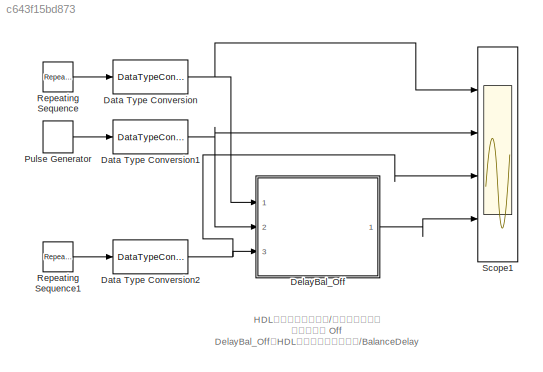
MODEL slx_c643f15bd873
KIND model
CONFIG AbsTol = auto
CONFIG FixedStep = auto
CONFIG MaxStep = auto
CONFIG MinStep = auto
CONFIG RelTol = 1e-3
CONFIG SampleTimeConstraint = Unconstrained
CONFIG Solver = FixedStepDiscrete
CONFIG SolverMode = SingleTasking
CONFIG SolverName = FixedStepDiscrete
CONFIG StartTime = 0.0
CONFIG StopTime = 10
BLOCK [DataTypeConversion] Data Type Conversion
  OutDataTypeStr = fixdt(1,16,12)
  OutMax = 2*pi
  OutMin = 0
  RndMeth = Floor
  SampleTime = 1/1000
  SaturateOnIntegerOverflow = off
BLOCK [DataTypeConversion] Data Type Conversion1
  OutDataTypeStr = boolean
  RndMeth = Floor
  SampleTime = 1/1000
  SaturateOnIntegerOverflow = off
BLOCK [DataTypeConversion] Data Type Conversion2
  OutDataTypeStr = fixdt(0,8,4)
  OutMax = 10
  OutMin = 0
  RndMeth = Floor
  SampleTime = 1/1000
  SaturateOnIntegerOverflow = off
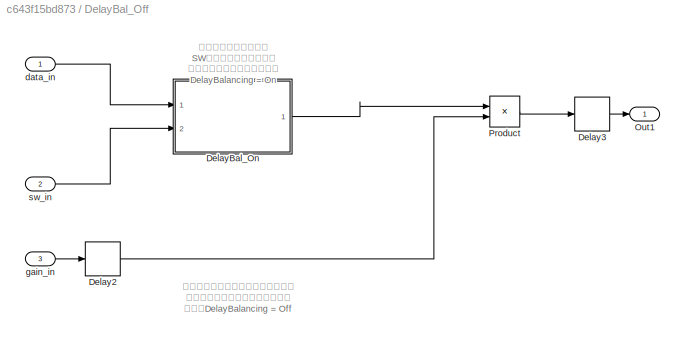
BLOCK [SubSystem] DelayBal_Off
  Ports = [3, 1]
  RequestExecContextInheritance = off
  Variant = off
BLOCK [Delay] DelayBal_Off/Delay2
  DelayLength = 1
  InputPortMap = u0
  Ports = [1, 1]
BLOCK [Delay] DelayBal_Off/Delay3
  DelayLength = 1
  InputPortMap = u0
  Ports = [1, 1]
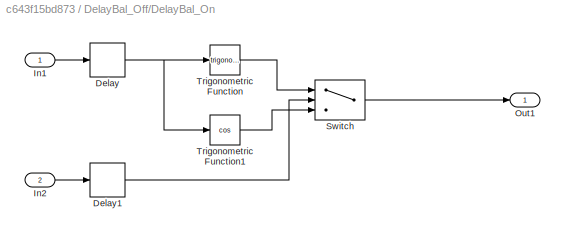
BLOCK [SubSystem] DelayBal_Off/DelayBal_On
  Ports = [2, 1]
  RequestExecContextInheritance = off
  Variant = off
BLOCK [Delay] DelayBal_Off/DelayBal_On/Delay
  DelayLength = 1
  InputPortMap = u0
  Ports = [1, 1]
BLOCK [Delay] DelayBal_Off/DelayBal_On/Delay1
  DelayLength = 1
  InputPortMap = u0
  Ports = [1, 1]
BLOCK [Inport] DelayBal_Off/DelayBal_On/In1
  IconDisplay = Port number
BLOCK [Inport] DelayBal_Off/DelayBal_On/In2
  IconDisplay = Port number
  Port = 2
BLOCK [Outport] DelayBal_Off/DelayBal_On/Out1
  IconDisplay = Port number
BLOCK [Switch] DelayBal_Off/DelayBal_On/Switch
  Criteria = u2 ~= 0
  InputSameDT = off
  SaturateOnIntegerOverflow = off
BLOCK [Trigonometry] DelayBal_Off/DelayBal_On/Trigonometric Function
  ApproximationMethod = CORDIC
  Ports = [1, 1]
BLOCK [Trigonometry] DelayBal_Off/DelayBal_On/Trigonometric Function1
  ApproximationMethod = CORDIC
  Operator = cos
  Ports = [1, 1]
BLOCK [Outport] DelayBal_Off/Out1
  IconDisplay = Port number
BLOCK [Product] DelayBal_Off/Product
  InputSameDT = off
  OutDataTypeStr = Inherit: Inherit via internal rule
  Ports = [2, 1]
  SaturateOnIntegerOverflow = off
BLOCK [Inport] DelayBal_Off/data_in
  IconDisplay = Port number
BLOCK [Inport] DelayBal_Off/gain_in
  IconDisplay = Port number
  Port = 3
BLOCK [Inport] DelayBal_Off/sw_in
  IconDisplay = Port number
  Port = 2
BLOCK [DiscretePulseGenerator] Pulse Generator
  Period = 1000*10
  Ports = [0, 1]
  PulseWidth = 1000*5
  SampleTime = 1/1000
BLOCK [Reference] Repeating Sequence  REF=simulink/Sources/Repeating
Sequence
  Ports = [0, 1]
  SourceBlock = simulink/Sources/Repeating\nSequence
  SourceType = Repeating table
BLOCK [Reference] Repeating Sequence1  REF=simulink/Sources/Repeating
Sequence
  Ports = [0, 1]
  SourceBlock = simulink/Sources/Repeating\nSequence
  SourceType = Repeating table
BLOCK [Scope] Scope1
  NumInputPorts = 4
  Ports = [4]
  ScopeSpecificationString = Simulink.scopes.TimeScopeBlockCfg('CurrentConfiguration', extmgr.ConfigurationSet(extmgr.Configuration('Core','General UI',true),extmgr.Configuration('Core','Source UI',true),extmgr.Configuration('Sources','WiredSimulink',true,'DataLoggingVariableName','ScopeData1','DataLoggingSaveFormat','StructureWithTime','DataLoggingDecimation','1','DataLoggingDecimateData',true),extmgr.Configuration('Visuals'...<+3777ch>
ANNOTATION (root): HDLモデルプロパティ/グローバル設定 遅延の調整 Off DelayBal_OffのHDLブロックプロパティ/BalanceDelay
ANNOTATION DelayBal_Off: このパスは係数データを与えていて 変化しないので遅延の調整は不要 上位のDelayBalancing = Off
ANNOTATION DelayBal_Off: 下のサブシステム内は SWタイミングを入力信号 と同期させる必要があるため DelayBalancing = On
NET Data Type Conversion1:1 -> DelayBal_Off:2, Scope1:2
NET Data Type Conversion2:1 -> DelayBal_Off:3, Scope1:3
NET Data Type Conversion:1 -> DelayBal_Off:1, Scope1:1
LINE DelayBal_Off/Delay2:1 -> DelayBal_Off/Product:2
LINE DelayBal_Off/Delay3:1 -> DelayBal_Off/Out1:1
LINE DelayBal_Off/DelayBal_On/Delay1:1 -> DelayBal_Off/DelayBal_On/Switch:2
NET DelayBal_Off/DelayBal_On/Delay:1 -> DelayBal_Off/DelayBal_On/Trigonometric Function1:1, DelayBal_Off/DelayBal_On/Trigonometric Function:1
LINE DelayBal_Off/DelayBal_On/In1:1 -> DelayBal_Off/DelayBal_On/Delay:1
LINE DelayBal_Off/DelayBal_On/In2:1 -> DelayBal_Off/DelayBal_On/Delay1:1
LINE DelayBal_Off/DelayBal_On/Switch:1 -> DelayBal_Off/DelayBal_On/Out1:1
LINE DelayBal_Off/DelayBal_On/Trigonometric Function1:1 -> DelayBal_Off/DelayBal_On/Switch:3
LINE DelayBal_Off/DelayBal_On/Trigonometric Function:1 -> DelayBal_Off/DelayBal_On/Switch:1
LINE DelayBal_Off/DelayBal_On:1 -> DelayBal_Off/Product:1
LINE DelayBal_Off/Product:1 -> DelayBal_Off/Delay3:1
LINE DelayBal_Off/data_in:1 -> DelayBal_Off/DelayBal_On:1
LINE DelayBal_Off/gain_in:1 -> DelayBal_Off/Delay2:1
LINE DelayBal_Off/sw_in:1 -> DelayBal_Off/DelayBal_On:2
LINE DelayBal_Off:1 -> Scope1:4
LINE Pulse Generator:1 -> Data Type Conversion1:1
LINE Repeating Sequence1:1 -> Data Type Conversion2:1
LINE Repeating Sequence:1 -> Data Type Conversion:1
note: NET lines group one-source signal fan-out (src -> all destinations, sorted); 1:1 wires keep LINE
